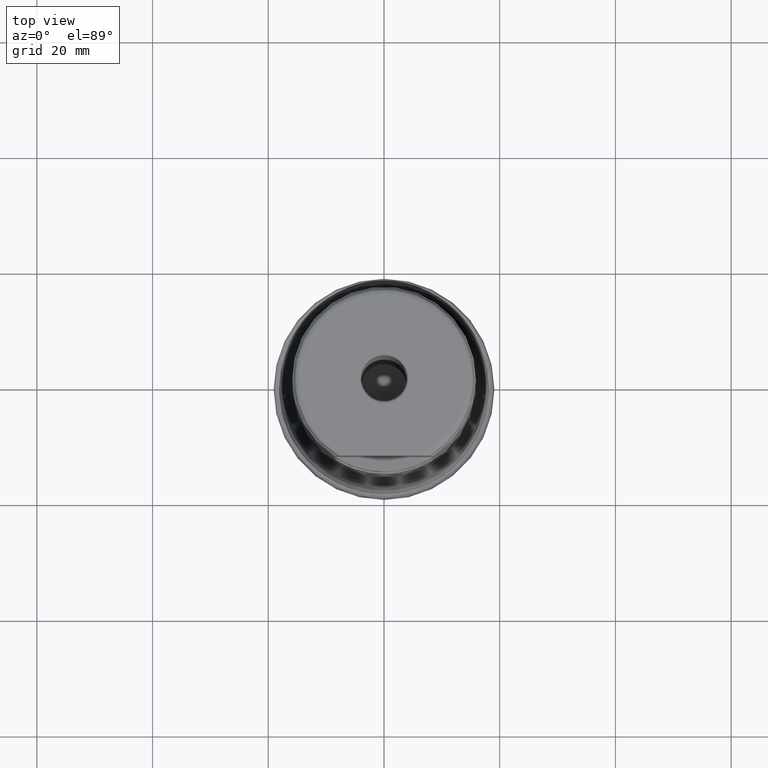
[diagram: clean part render]
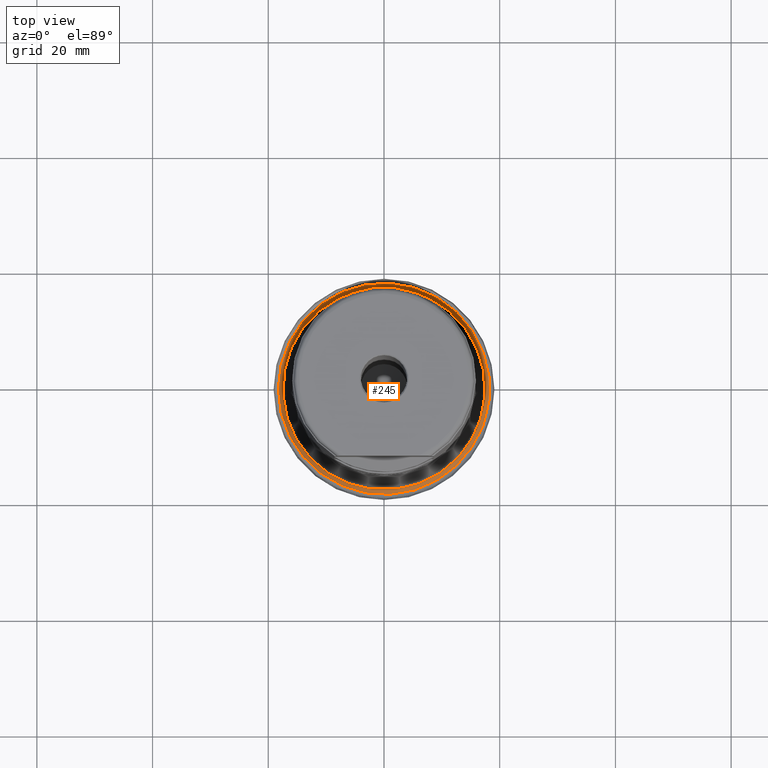
[diagram: same view with one face highlighted and labeled with its STEP entity id]
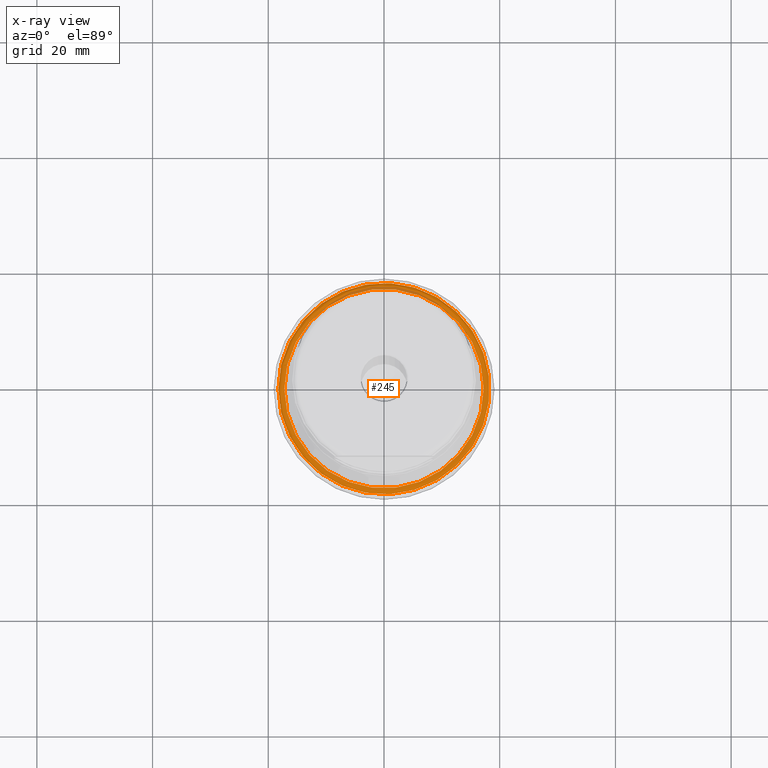
[diagram: x-ray of the same camera — body ghosted, the highlighted face saturated]
A machine part, top view. The second image highlights one B-rep face of the part: STEP entity #245.
The next image is the same camera in x-ray: the body ghosted, the highlighted face saturated — about 5% of this face is hidden behind the body in this view.
In plain terms, the highlighted face is a SurfaceOfRevolution surface.
Its self-contained STEP definition (entity closure, byte-faithful):
#122=SURFACE_OF_REVOLUTION('',#879,#145);
#145=AXIS1_PLACEMENT('',#1844,#1165);
#245=ADVANCED_FACE('',(#368,#369),#122,.F.);
#368=FACE_BOUND('',#472,.T.);
#369=FACE_BOUND('',#473,.T.);
#472=EDGE_LOOP('',(#622));
#473=EDGE_LOOP('',(#623));
#622=ORIENTED_EDGE('',*,*,#773,.T.);
#623=ORIENTED_EDGE('',*,*,#774,.F.);
#698=VERTEX_POINT('',#1816);
#699=VERTEX_POINT('',#1825);
#773=EDGE_CURVE('',#698,#698,#822,.T.);
#774=EDGE_CURVE('',#699,#699,#823,.T.);
#822=CIRCLE('',#967,18.2593886567379);
#823=CIRCLE('',#968,17.2224661899978);
#879=B_SPLINE_CURVE_WITH_KNOTS('',5,(#1826,#1827,#1828,#1829,#1830,#1831,
#1832,#1833,#1834,#1835,#1836,#1837,#1838,#1839,#1840,#1841,#1842,#1843),
 .UNSPECIFIED.,.F.,.F.,(6,1,1,1,1,1,1,1,1,1,1,1,1,6),(0.,0.0815467886112913,
0.19606586996015,0.311032154437901,0.366385109840282,0.425790919108763,
0.466697690104813,0.540557662683767,0.599603648430389,0.655339085853373,
0.699900287921466,0.769878712963588,0.884425706654755,1.),.UNSPECIFIED.);
#967=AXIS2_PLACEMENT_3D('',#1815,#1160,#1161);
#968=AXIS2_PLACEMENT_3D('',#1824,#1163,#1164);
#1160=DIRECTION('',(0.,0.,-1.));
#1161=DIRECTION('',(-1.,0.,0.));
#1163=DIRECTION('',(0.,0.,-1.));
#1164=DIRECTION('',(-1.,0.,0.));
#1165=DIRECTION('',(0.,0.,-1.));
#1815=CARTESIAN_POINT('',(0.,0.,9.92211913141617));
#1816=CARTESIAN_POINT('',(-18.2593886567379,0.,9.92211913141617));
#1824=CARTESIAN_POINT('',(0.,0.,10.2111936337054));
#1825=CARTESIAN_POINT('',(-17.2224661899978,0.,10.2111936337054));
#1826=CARTESIAN_POINT('',(17.2224689284022,0.,10.2111930445389));
#1827=CARTESIAN_POINT('',(17.2394437067366,-1.42065485157729E-32,10.2202589592479));
#1828=CARTESIAN_POINT('',(17.2809755382957,-5.90206592440052E-32,10.2407106139749));
#1829=CARTESIAN_POINT('',(17.3495074258849,-1.15056486689739E-16,10.2676899422321));
#1830=CARTESIAN_POINT('',(17.4338510044822,-3.99064070146308E-16,10.2894688129105));
#1831=CARTESIAN_POINT('',(17.534521300464,-8.54512903170061E-16,10.3007191633553));
#1832=CARTESIAN_POINT('',(17.6260305629323,-1.19603392233012E-15,10.2991927252987));
#1833=CARTESIAN_POINT('',(17.7072907038335,-1.62566145337081E-15,10.2897257218056));
#1834=CARTESIAN_POINT('',(17.7745045017226,-1.92820781154474E-15,10.2761554973062));
#1835=CARTESIAN_POINT('',(17.8404651998775,-1.96470525188049E-15,10.2569521631968));
#1836=CARTESIAN_POINT('',(17.9013411237122,-1.84885518487551E-15,10.2336282712092));
#1837=CARTESIAN_POINT('',(17.9662322646807,-1.43336182811263E-15,10.202267806157));
#1838=CARTESIAN_POINT('',(18.0365745320377,-7.08359150944106E-16,10.1606708368294));
#1839=CARTESIAN_POINT('',(18.1129529571688,9.30821762381341E-16,10.1038389491747));
#1840=CARTESIAN_POINT('',(18.1716568704657,2.02405077112359E-15,10.0466313218265));
#1841=CARTESIAN_POINT('',(18.2161879183733,3.46944695195362E-15,9.99119742341264));
#1842=CARTESIAN_POINT('',(18.2457448967646,3.46944695195362E-15,9.9456762389456));
#1843=CARTESIAN_POINT('',(18.2593814350443,3.46944695195361E-15,9.92211488869469));
#1844=CARTESIAN_POINT('',(0.,0.,0.));